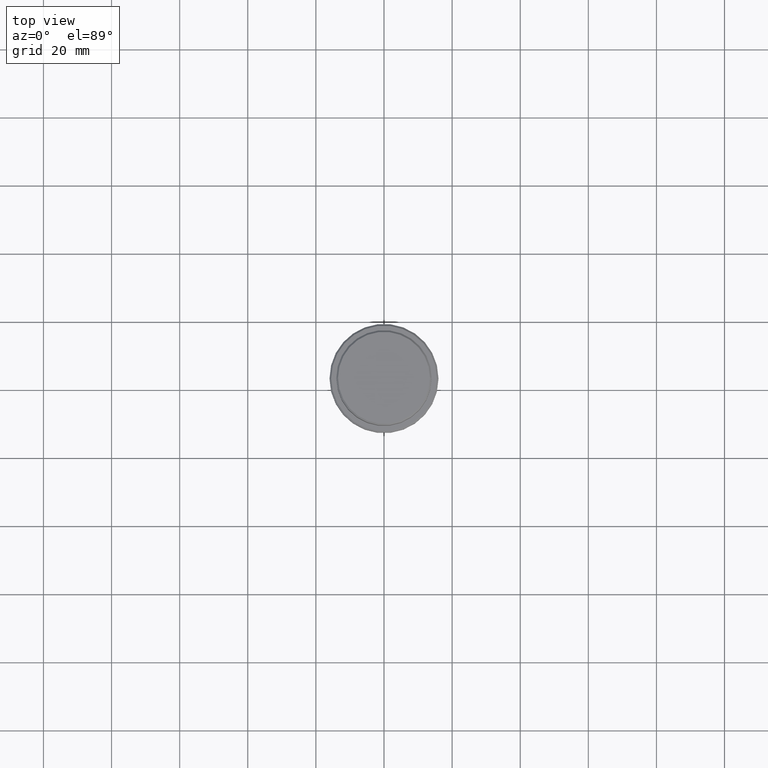
[diagram: clean part render]
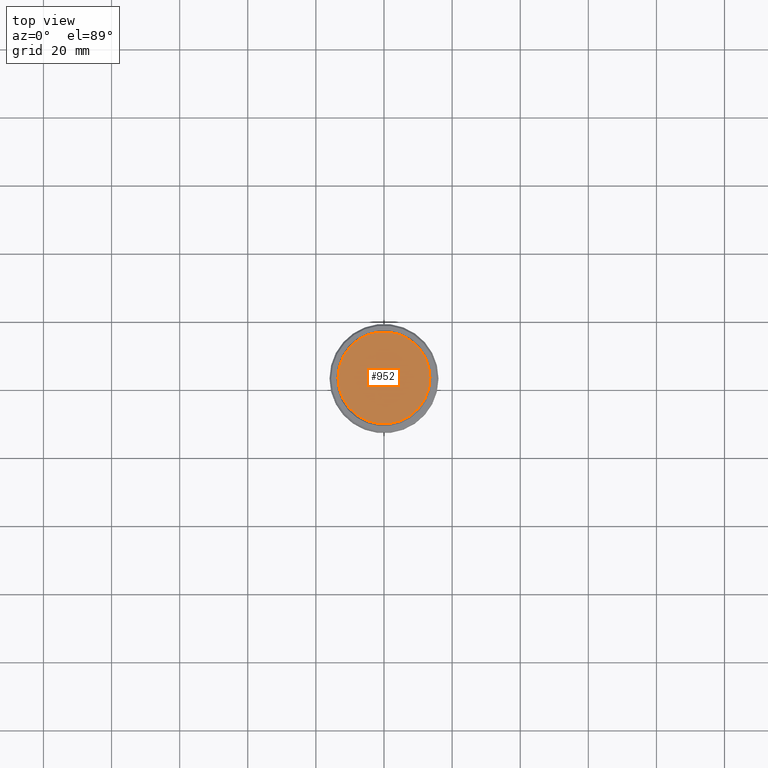
[diagram: same view with one face highlighted and labeled with its STEP entity id]
A machine part, top view. The second image highlights one B-rep face of the part: STEP entity #952.
In plain terms, the highlighted planar face has unit normal (0, -0, 1).
Its self-contained STEP definition (entity closure, byte-faithful):
#18 = CARTESIAN_POINT ( 'NONE',  ( 0.000000000000000000, 0.000000000000000000, 0.000000000000000000 ) ) ;
#22 = EDGE_LOOP ( 'NONE', ( #946, #51 ) ) ;
#51 = ORIENTED_EDGE ( 'NONE', *, *, #569, .T. ) ;
#148 = CIRCLE ( 'NONE', #941, 13.49999999999998579 ) ;
#344 = VERTEX_POINT ( 'NONE', #466 ) ;
#357 = CARTESIAN_POINT ( 'NONE',  ( 0.000000000000000000, 0.000000000000000000, 0.000000000000000000 ) ) ;
#370 = EDGE_CURVE ( 'NONE', #344, #1314, #148, .T. ) ;
#466 = CARTESIAN_POINT ( 'NONE',  ( -13.49999999999998579, 0.000000000000000000, 0.000000000000000000 ) ) ;
#493 = AXIS2_PLACEMENT_3D ( 'NONE', #18, #885, #1326 ) ;
#564 = FACE_OUTER_BOUND ( 'NONE', #22, .T. ) ;
#569 = EDGE_CURVE ( 'NONE', #1314, #344, #1097, .T. ) ;
#801 = AXIS2_PLACEMENT_3D ( 'NONE', #1396, #954, #1285 ) ;
#885 = DIRECTION ( 'NONE',  ( 0.000000000000000000, -0.000000000000000000, 1.000000000000000000 ) ) ;
#895 = CARTESIAN_POINT ( 'NONE',  ( 13.49999999999998579, 1.683889348827608879E-15, 0.000000000000000000 ) ) ;
#941 = AXIS2_PLACEMENT_3D ( 'NONE', #357, #1348, #998 ) ;
#946 = ORIENTED_EDGE ( 'NONE', *, *, #370, .T. ) ;
#952 = ADVANCED_FACE ( 'NONE', ( #564 ), #990, .T. ) ;
#954 = DIRECTION ( 'NONE',  ( -0.000000000000000000, -0.000000000000000000, 1.000000000000000000 ) ) ;
#990 = PLANE ( 'NONE',  #493 ) ;
#998 = DIRECTION ( 'NONE',  ( 1.000000000000000000, 0.000000000000000000, 0.000000000000000000 ) ) ;
#1097 = CIRCLE ( 'NONE', #801, 13.49999999999998579 ) ;
#1285 = DIRECTION ( 'NONE',  ( 1.000000000000000000, 0.000000000000000000, 0.000000000000000000 ) ) ;
#1314 = VERTEX_POINT ( 'NONE', #895 ) ;
#1326 = DIRECTION ( 'NONE',  ( 1.000000000000000000, 0.000000000000000000, 0.000000000000000000 ) ) ;
#1348 = DIRECTION ( 'NONE',  ( -0.000000000000000000, -0.000000000000000000, 1.000000000000000000 ) ) ;
#1396 = CARTESIAN_POINT ( 'NONE',  ( 0.000000000000000000, 0.000000000000000000, 0.000000000000000000 ) ) ;